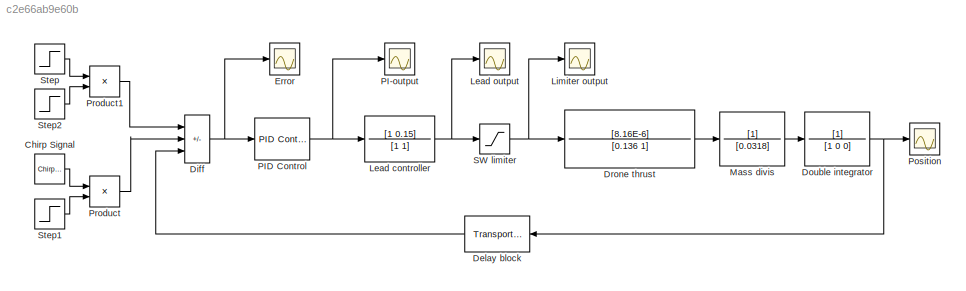
MODEL slx_c2e66ab9e60b
KIND model
CONFIG AbsTol = auto
CONFIG EnableMultiTasking = off
CONFIG FixedStep = auto
CONFIG MaxStep = auto
CONFIG MinStep = auto
CONFIG RelTol = 1e-3
CONFIG SampleTimeConstraint = Unconstrained
CONFIG SolverName = VariableStepAuto
CONFIG StartTime = 0.0
CONFIG StopTime = 20
BLOCK [Reference] Chirp Signal  REF=simulink/Sources/Chirp Signal
  Ports = [0, 1]
  SourceBlock = simulink/Sources/Chirp Signal
  SourceProductBaseCode = SL
  SourceType = chirp
BLOCK [TransportDelay] Delay block
  DelayTime = 0.01
  Ports = [1, 1]
BLOCK [Sum] Diff
  IconShape = rectangular
  Inputs = ++-
  Ports = [3, 1]
BLOCK [TransferFcn] Double integrator
  Denominator = [1 0 0]
BLOCK [TransferFcn] Drone thrust
  Denominator = [0.136 1]
  Numerator = [8.16E-6]
BLOCK [Scope] Error
  Floating = off
  NumInputPorts = 1
  Ports = [1]
  ScopeSpecificationString = Simulink.scopes.TimeScopeBlockCfg('CurrentConfiguration', extmgr.ConfigurationSet(extmgr.Configuration('Core','General UI',true),extmgr.Configuration('Core','Source UI',true),extmgr.Configuration('Sources','WiredSimulink',true,'DataLoggingVariableName','ScopeData3'),extmgr.Configuration('Visuals','Time Domain',true,'SerializedDisplays',{struct('MinYLimReal','-0.52398','MaxYLimReal','3.39155','YLab...<+1389ch>
BLOCK [TransferFcn] Lead controller
  Denominator = [1 1]
  Numerator = [1 0.15]
BLOCK [Scope] Lead output
  Floating = off
  NumInputPorts = 1
  Ports = [1]
  ScopeSpecificationString = Simulink.scopes.TimeScopeBlockCfg('CurrentConfiguration', extmgr.ConfigurationSet(extmgr.Configuration('Core','General UI',true),extmgr.Configuration('Core','Source UI',true),extmgr.Configuration('Sources','WiredSimulink',true,'DataLoggingVariableName','ScopeData2'),extmgr.Configuration('Visuals','Time Domain',true,'SerializedDisplays',{struct('MinYLimReal','-88339.55114','MaxYLimReal','761482.172...<+1722ch>
BLOCK [Scope] Limiter output
  Floating = off
  NumInputPorts = 1
  Ports = [1]
  ScopeSpecificationString = Simulink.scopes.TimeScopeBlockCfg('CurrentConfiguration', extmgr.ConfigurationSet(extmgr.Configuration('Core','General UI',true),extmgr.Configuration('Core','Source UI',true),extmgr.Configuration('Sources','WiredSimulink',true,'DataLoggingVariableName','ScopeData1'),extmgr.Configuration('Visuals','Time Domain',true,'SerializedDisplays',{struct('MinYLimReal','-895.55489','MaxYLimReal','24713.92286'...<+1773ch>
BLOCK [TransferFcn] Mass divis
  Denominator = [0.0318]
BLOCK [Scope] PI-output
  Floating = off
  NumInputPorts = 1
  Ports = [1]
  ScopeSpecificationString = Simulink.scopes.TimeScopeBlockCfg('CurrentConfiguration', extmgr.ConfigurationSet(extmgr.Configuration('Core','General UI',true),extmgr.Configuration('Core','Source UI',true),extmgr.Configuration('Sources','WiredSimulink',true,'DataLoggingVariableName','ScopeData1'),extmgr.Configuration('Visuals','Time Domain',true,'SerializedDisplays',{struct('MinYLimReal','-84562.5','MaxYLimReal','761062.5','YLa...<+1406ch>
BLOCK [Reference] PID Control  REF=pid_lib/PID Controller
  Ports = [1, 1]
  SourceBlock = pid_lib/PID Controller
  SourceProductBaseCode = SL
  SourceType = PID 1dof
BLOCK [Scope] Position
  Floating = off
  NumInputPorts = 1
  Ports = [1]
  ScopeSpecificationString = Simulink.scopes.TimeScopeBlockCfg('CurrentConfiguration', extmgr.ConfigurationSet(extmgr.Configuration('Core','General UI',true),extmgr.Configuration('Core','Source UI',true),extmgr.Configuration('Sources','WiredSimulink',true),extmgr.Configuration('Visuals','Time Domain',true,'SerializedDisplays',{struct('MinYLimReal','-0.39155','MaxYLimReal','3.52398','YLabelReal','','MinYLimMag','0.00000','MaxY...<+1688ch>
BLOCK [Product] Product
  Ports = [2, 1]
BLOCK [Product] Product1
  Ports = [2, 1]
BLOCK [Saturate] SW limiter
  LowerLimit = -32000
  UpperLimit = 24212
BLOCK [Step] Step
  After = 3
  SampleTime = 0
BLOCK [Step] Step1
  After = 0
  SampleTime = 0
  Time = 0
BLOCK [Step] Step2
  SampleTime = 0
  Time = 0
LINE Chirp Signal:1 -> Product:1
LINE Delay block:1 -> Diff:3
NET Diff:1 -> Error:1, PID Control:1
NET Double integrator:1 -> Delay block:1, Position:1
LINE Drone thrust:1 -> Mass divis:1
NET Lead controller:1 -> Lead output:1, SW limiter:1
LINE Mass divis:1 -> Double integrator:1
NET PID Control:1 -> Lead controller:1, PI-output:1
LINE Product1:1 -> Diff:1
LINE Product:1 -> Diff:2
NET SW limiter:1 -> Drone thrust:1, Limiter output:1
LINE Step1:1 -> Product:2
LINE Step2:1 -> Product1:2
LINE Step:1 -> Product1:1
note: NET lines group one-source signal fan-out (src -> all destinations, sorted); 1:1 wires keep LINE
